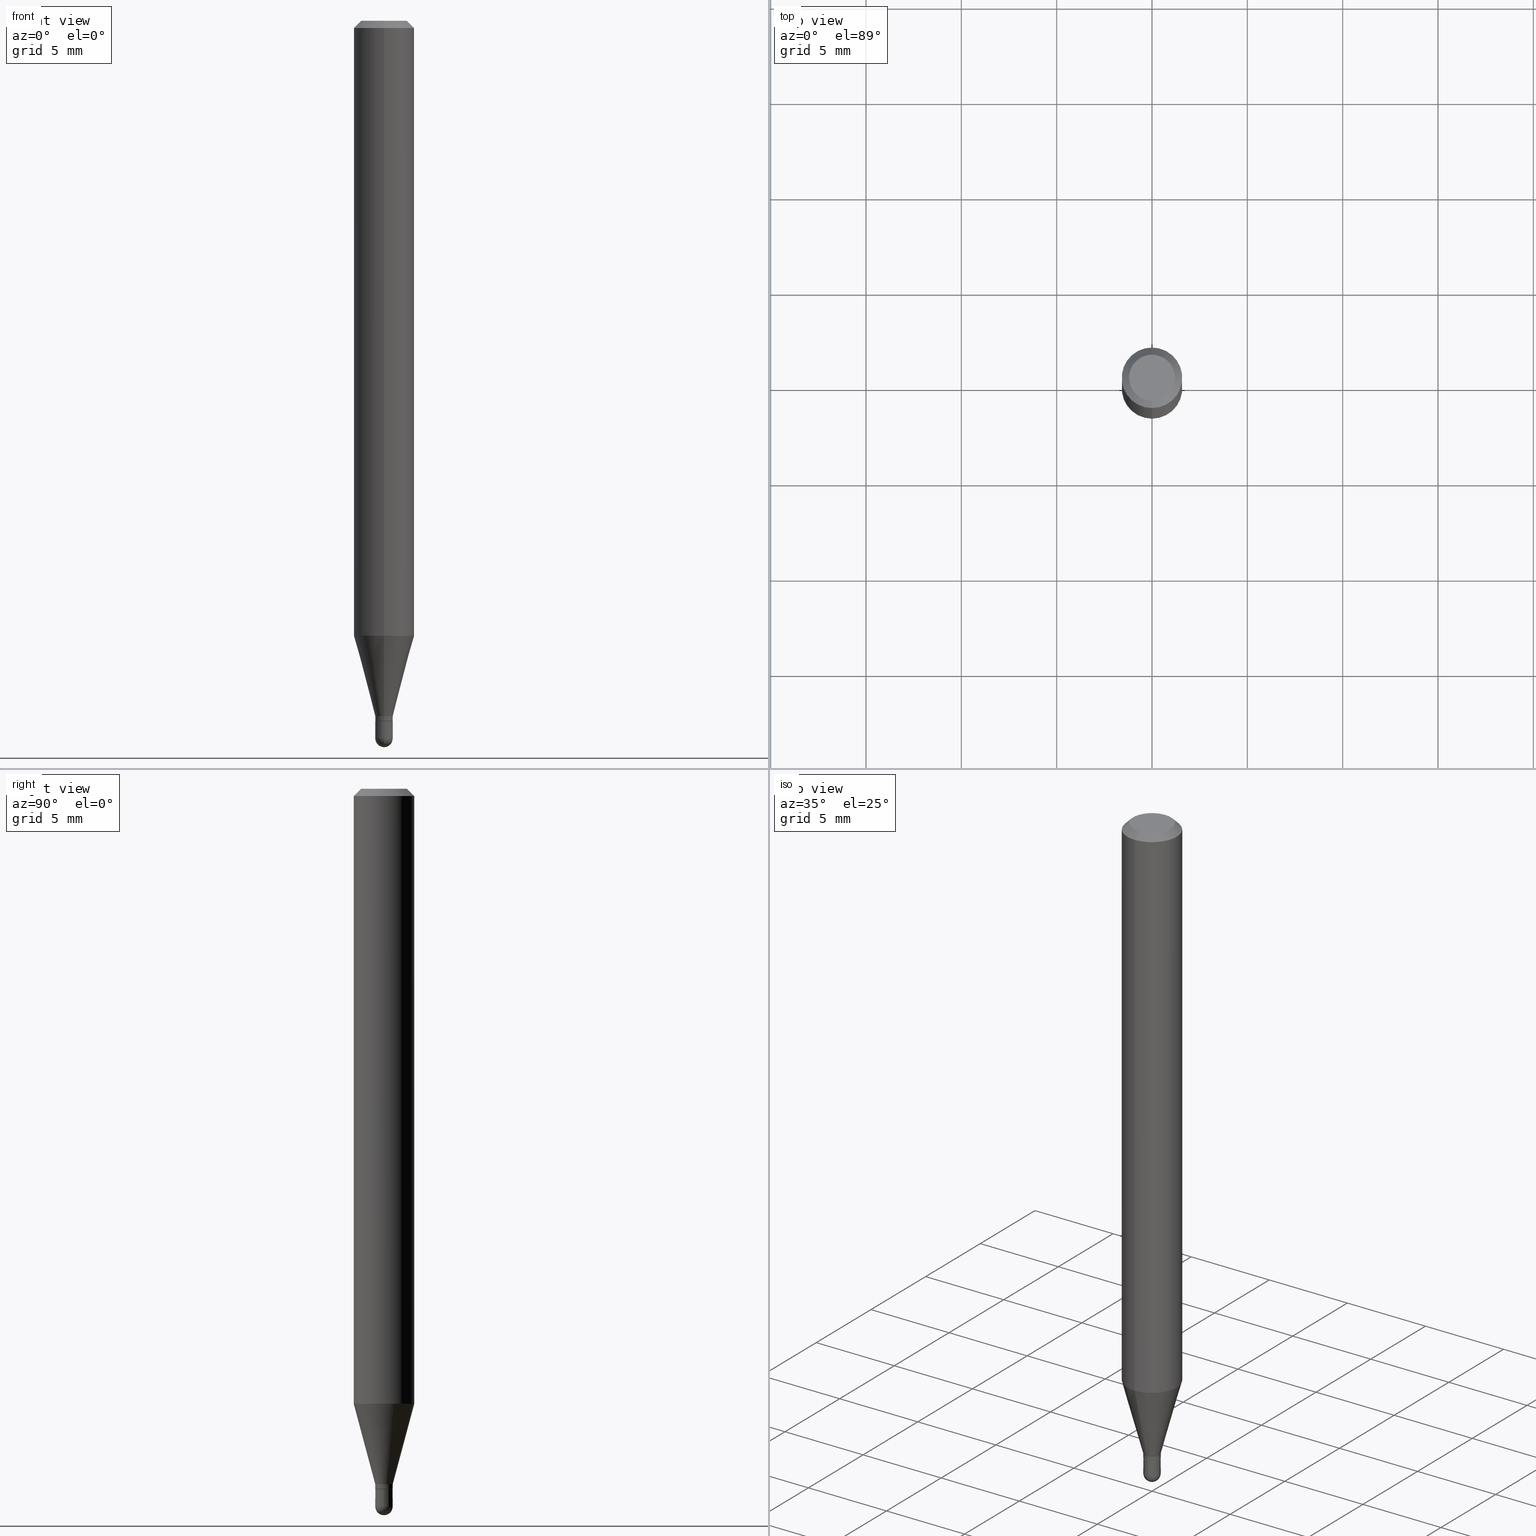
[diagram: canonical four-view strip — front | top / right | iso, engineering-drawing reading convention]
A machine part, canonical four-view strip (front | top / right | iso — engineering-drawing reading convention). The complete STEP part file that produces these views, byte-faithful:
ISO-10303-21;
HEADER;
FILE_DESCRIPTION (( 'STEP AP203' ),
    '1' );
FILE_NAME ('03060.STEP',
    '2024-03-08T18:05:12',
    ( '' ),
    ( '' ),
    'SwSTEP 2.0',
    'SolidWorks 2023',
    '' );
FILE_SCHEMA (( 'CONFIG_CONTROL_DESIGN' ));
ENDSEC;

DATA;
#1 =( CONVERSION_BASED_UNIT ( 'INCH', #433 ) LENGTH_UNIT ( ) NAMED_UNIT ( #209 ) );
#2 = CIRCLE ( 'NONE', #424, 0.04749999999999999362 ) ;
#3 = DIRECTION ( 'NONE',  ( -6.982962677686265922E-15, -1.000000000000000000, 3.483106191921935554E-15 ) ) ;
#4 = ORIENTED_EDGE ( 'NONE', *, *, #102, .F. ) ;
#5 = DIRECTION ( 'NONE',  ( -6.982962677686265922E-15, -1.000000000000000000, 3.491499279888508481E-15 ) ) ;
#6 = ORIENTED_EDGE ( 'NONE', *, *, #390, .T. ) ;
#7 = DIRECTION ( 'NONE',  ( 5.024295867788190974E-15, 0.7071067811865681119, 0.7071067811865270336 ) ) ;
#8 = COORDINATED_UNIVERSAL_TIME_OFFSET ( 5, 0, .BEHIND. ) ;
#9 = LINE ( 'NONE', #383, #221 ) ;
#10 = DIRECTION ( 'NONE',  ( 2.445456278020119844E-29, -3.491499279888508481E-15, -1.000000000000000000 ) ) ;
#11 = AXIS2_PLACEMENT_3D ( 'NONE', #399, #393, #510 ) ;
#12 = AXIS2_PLACEMENT_3D ( 'NONE', #266, #52, #137 ) ;
#13 = VECTOR ( 'NONE', #7, 39.37007874015748143 ) ;
#14 = DIRECTION ( 'NONE',  ( -6.982962677686265133E-15, -1.000000000000000000, 0.000000000000000000 ) ) ;
#15 = CARTESIAN_POINT ( 'NONE',  ( 0.000000000000000000, 0.000000000000000000, 0.000000000000000000 ) ) ;
#16 = PERSON_AND_ORGANIZATION ( #101, #371 ) ;
#17 = CARTESIAN_POINT ( 'NONE',  ( 3.536147893743707559E-29, -5.048682015967188692E-15, -1.446000000000000174 ) ) ;
#18 = ADVANCED_FACE ( 'NONE', ( #107 ), #25, .T. ) ;
#19 = CONICAL_SURFACE ( 'NONE', #26, 0.01749999999999999820, 0.7853981633974739252 ) ;
#20 = CARTESIAN_POINT ( 'NONE',  ( 3.622645471445850223E-29, -5.176579708404007627E-15, -1.482000000000000206 ) ) ;
#21 = AXIS2_PLACEMENT_3D ( 'NONE', #174, #90, #256 ) ;
#22 = UNCERTAINTY_MEASURE_WITH_UNIT (LENGTH_MEASURE( 1.000000000000000082E-05 ), #1, 'distance_accuracy_value', 'NONE');
#23 = VERTEX_POINT ( 'NONE', #496 ) ;
#24 = EDGE_CURVE ( 'NONE', #178, #501, #35, .T. ) ;
#25 = CYLINDRICAL_SURFACE ( 'NONE', #436, 0.06250000000000000000 ) ;
#26 = AXIS2_PLACEMENT_3D ( 'NONE', #472, #315, #119 ) ;
#27 = EDGE_LOOP ( 'NONE', ( #512, #474, #415, #149, #78 ) ) ;
#28 = ADVANCED_FACE ( 'NONE', ( #502 ), #202, .T. ) ;
#29 = VERTEX_POINT ( 'NONE', #386 ) ;
#30 = ORIENTED_EDGE ( 'NONE', *, *, #448, .F. ) ;
#31 = CARTESIAN_POINT ( 'NONE',  ( 3.840629472727447874E-16, 0.04749999999999999362, 7.364327909283752044E-17 ) ) ;
#32 = ADVANCED_FACE ( 'NONE', ( #429 ), #349, .T. ) ;
#33 = DIRECTION ( 'NONE',  ( 7.105427357601000281E-15, 1.000000000000000000, 0.000000000000000000 ) ) ;
#34 = DIRECTION ( 'NONE',  ( -2.445456278020119844E-29, 3.491499279888508481E-15, 1.000000000000000000 ) ) ;
#35 = CIRCLE ( 'NONE', #507, 0.06250000000000000000 ) ;
#36 = CC_DESIGN_SECURITY_CLASSIFICATION ( #328, ( #89 ) ) ;
#37 = CARTESIAN_POINT ( 'NONE',  ( 1.261213355974528268E-16, 0.01749999999999494668, -1.446000000000000174 ) ) ;
#38 = DIRECTION ( 'NONE',  ( 1.000000000000000000, -6.982962677686280121E-15, 0.000000000000000000 ) ) ;
#39 = ORIENTED_EDGE ( 'NONE', *, *, #455, .T. ) ;
#40 = ADVANCED_FACE ( 'NONE', ( #347 ), #160, .T. ) ;
#41 = PERSON_AND_ORGANIZATION_ROLE ( 'design_owner' ) ;
#42 = LINE ( 'NONE', #176, #411 ) ;
#43 = ORIENTED_EDGE ( 'NONE', *, *, #195, .F. ) ;
#44 = PERSON_AND_ORGANIZATION ( #101, #371 ) ;
#45 = ORIENTED_EDGE ( 'NONE', *, *, #312, .T. ) ;
#46 =( GEOMETRIC_REPRESENTATION_CONTEXT ( 3 ) GLOBAL_UNCERTAINTY_ASSIGNED_CONTEXT ( ( #22 ) ) GLOBAL_UNIT_ASSIGNED_CONTEXT ( ( #1, #511, #236 ) ) REPRESENTATION_CONTEXT ( 'NONE', 'WORKASPACE' ) );
#47 = FACE_OUTER_BOUND ( 'NONE', #237, .T. ) ;
#48 = ORIENTED_EDGE ( 'NONE', *, *, #207, .F. ) ;
#49 = CARTESIAN_POINT ( 'NONE',  ( 3.511675215236892590E-29, -5.013792965919898616E-15, -1.436000000000000165 ) ) ;
#50 = CARTESIAN_POINT ( 'NONE',  ( 3.665894260296920714E-29, -5.240528554622416701E-15, -1.500000000000000222 ) ) ;
#51 = CARTESIAN_POINT ( 'NONE',  ( -3.773273898774340269E-16, -0.04749999999999999362, 4.053357106822457906E-16 ) ) ;
#52 = DIRECTION ( 'NONE',  ( 1.000000000000000000, -6.982962677686265922E-15, 4.883557194083112901E-29 ) ) ;
#53 = DIRECTION ( 'NONE',  ( 1.000000000000000000, -6.982962677686266711E-15, 4.876176775795935232E-29 ) ) ;
#54 = AXIS2_PLACEMENT_3D ( 'NONE', #324, #85, #120 ) ;
#55 = VECTOR ( 'NONE', #94, 39.37007874015748143 ) ;
#56 = CALENDAR_DATE ( 2024, 8, 3 ) ;
#57 = PERSON_AND_ORGANIZATION_ROLE ( 'classification_officer' ) ;
#58 = ORIENTED_EDGE ( 'NONE', *, *, #126, .T. ) ;
#59 = CLOSED_SHELL ( 'NONE', ( #200, #257, #250, #264, #112, #32, #18, #28, #414, #271, #225, #40 ) ) ;
#60 = AXIS2_PLACEMENT_3D ( 'NONE', #148, #310, #463 ) ;
#61 = CIRCLE ( 'NONE', #21, 0.01799999999999992231 ) ;
#62 = DATE_AND_TIME ( #421, #191 ) ;
#63 = EDGE_LOOP ( 'NONE', ( #320, #198, #194, #86 ) ) ;
#64 = DIRECTION ( 'NONE',  ( 4.937700262164548042E-15, 0.7071067811865451302, -0.7071067811865499042 ) ) ;
#65 = ORIENTED_EDGE ( 'NONE', *, *, #465, .F. ) ;
#66 = CIRCLE ( 'NONE', #60, 0.01799999999999999517 ) ;
#67 = LINE ( 'NONE', #443, #242 ) ;
#68 = DIRECTION ( 'NONE',  ( -2.445456278020119844E-29, 3.491499279888508481E-15, 1.000000000000000000 ) ) ;
#69 = CARTESIAN_POINT ( 'NONE',  ( 1.278976924368523885E-16, 0.01799999999999481182, -1.445500000000000229 ) ) ;
#70 = DIRECTION ( 'NONE',  ( -2.445456278020119844E-29, 3.491499279888508481E-15, 1.000000000000000000 ) ) ;
#71 = ORIENTED_EDGE ( 'NONE', *, *, #395, .F. ) ;
#72 = DIRECTION ( 'NONE',  ( -2.445468806185136597E-29, 3.491481338843145583E-15, 1.000000000000000000 ) ) ;
#73 = ORIENTED_EDGE ( 'NONE', *, *, #364, .F. ) ;
#74 = CIRCLE ( 'NONE', #231, 0.01799999999999992231 ) ;
#75 = PRODUCT ( '03060', '03060', '', ( #154 ) ) ;
#76 = DIRECTION ( 'NONE',  ( -2.445456278020119844E-29, 3.491499279888508481E-15, 1.000000000000000000 ) ) ;
#77 = CARTESIAN_POINT ( 'NONE',  ( 1.256933281983881437E-16, 0.01799999999999494713, -1.446000000000000174 ) ) ;
#78 = ORIENTED_EDGE ( 'NONE', *, *, #465, .T. ) ;
#79 = DIRECTION ( 'NONE',  ( 1.000000000000000000, -6.982962677686265922E-15, 4.883557194083112901E-29 ) ) ;
#80 = CARTESIAN_POINT ( 'NONE',  ( 3.536129778017093225E-29, -5.048707958718783712E-15, -1.446000000000000174 ) ) ;
#81 = ORIENTED_EDGE ( 'NONE', *, *, #343, .F. ) ;
#82 = EDGE_CURVE ( 'NONE', #286, #401, #122, .T. ) ;
#83 = ADVANCED_FACE ( 'NONE', ( #284 ), #439, .F. ) ;
#84 = DATE_AND_TIME ( #133, #169 ) ;
#85 = DIRECTION ( 'NONE',  ( -2.445456278020119844E-29, 3.491499279888508481E-15, 1.000000000000000000 ) ) ;
#86 = ORIENTED_EDGE ( 'NONE', *, *, #455, .F. ) ;
#87 = DIRECTION ( 'NONE',  ( -6.982962677686265133E-15, -1.000000000000000000, 0.000000000000000000 ) ) ;
#88 = CC_DESIGN_PERSON_AND_ORGANIZATION_ASSIGNMENT ( #16, #296, ( #89 ) ) ;
#89 = PRODUCT_DEFINITION_FORMATION_WITH_SPECIFIED_SOURCE ( 'ANY', '', #75, .NOT_KNOWN. ) ;
#90 = DIRECTION ( 'NONE',  ( -2.445456278020119844E-29, 3.491499279888508481E-15, 1.000000000000000000 ) ) ;
#91 = CARTESIAN_POINT ( 'NONE',  ( 3.511675215236892590E-29, -5.013792965919898616E-15, -1.436000000000000165 ) ) ;
#92 = ORIENTED_EDGE ( 'NONE', *, *, #390, .F. ) ;
#93 = DIRECTION ( 'NONE',  ( -1.000000000000000000, 6.982962677686265922E-15, -4.883557194083112340E-29 ) ) ;
#94 = DIRECTION ( 'NONE',  ( -2.445456278020120124E-29, 3.491499279888508481E-15, 1.000000000000000000 ) ) ;
#95 = APPROVAL_STATUS ( 'not_yet_approved' ) ;
#96 = CYLINDRICAL_SURFACE ( 'NONE', #314, 0.06250000000000000000 ) ;
#97 = APPROVAL_DATE_TIME ( #84, #380 ) ;
#98 = APPROVAL_PERSON_ORGANIZATION ( #321, #354, #268 ) ;
#99 = PERSON_AND_ORGANIZATION_ROLE ( 'design_supplier' ) ;
#100 = DIRECTION ( 'NONE',  ( 2.445456278020119844E-29, -3.491499279888508481E-15, -1.000000000000000000 ) ) ;
#101 = PERSON ( 'UNSPECIFIED', 'UNSPECIFIED', 'UNSPECIFIED', ('UNSPECIFIED'), ('UNSPECIFIED'), ('UNSPECIFIED') ) ;
#102 = EDGE_CURVE ( 'NONE', #392, #501, #42, .T. ) ;
#103 = CARTESIAN_POINT ( 'NONE',  ( -0.01799999999999999864, 1.278976924368180238E-16, -8.854083162458829188E-31 ) ) ;
#104 = ORIENTED_EDGE ( 'NONE', *, *, #479, .F. ) ;
#105 = DATE_TIME_ROLE ( 'classification_date' ) ;
#106 = CLOSED_SHELL ( 'NONE', ( #331, #408, #83, #179, #333 ) ) ;
#107 = FACE_OUTER_BOUND ( 'NONE', #228, .T. ) ;
#108 = AXIS2_PLACEMENT_3D ( 'NONE', #15, #135, #295 ) ;
#109 = APPROVAL_STATUS ( 'not_yet_approved' ) ;
#110 = CALENDAR_DATE ( 2024, 8, 3 ) ;
#111 = ORIENTED_EDGE ( 'NONE', *, *, #491, .T. ) ;
#112 = ADVANCED_FACE ( 'NONE', ( #308 ), #113, .T. ) ;
#113 = CONICAL_SURFACE ( 'NONE', #269, 0.01799999999999992231, 0.2617993877991506846 ) ;
#114 = CC_DESIGN_APPROVAL ( #342, ( #89 ) ) ;
#115 = ORIENTED_EDGE ( 'NONE', *, *, #290, .T. ) ;
#116 = EDGE_CURVE ( 'NONE', #401, #178, #499, .T. ) ;
#117 = ORIENTED_EDGE ( 'NONE', *, *, #141, .F. ) ;
#118 = CC_DESIGN_PERSON_AND_ORGANIZATION_ASSIGNMENT ( #450, #99, ( #89 ) ) ;
#119 = DIRECTION ( 'NONE',  ( -6.982962677686265922E-15, -1.000000000000000000, 0.000000000000000000 ) ) ;
#120 = DIRECTION ( 'NONE',  ( -6.982962677686265922E-15, -1.000000000000000000, 4.370956789862821150E-15 ) ) ;
#121 = ORIENTED_EDGE ( 'NONE', *, *, #161, .T. ) ;
#122 = CIRCLE ( 'NONE', #54, 0.06250000000000000000 ) ;
#123 = AXIS2_PLACEMENT_3D ( 'NONE', #241, #159, #33 ) ;
#124 = DIRECTION ( 'NONE',  ( -2.445456278020119844E-29, 3.491499279888508481E-15, 1.000000000000000000 ) ) ;
#125 = ORIENTED_EDGE ( 'NONE', *, *, #116, .T. ) ;
#126 = EDGE_CURVE ( 'NONE', #155, #178, #461, .T. ) ;
#127 = VERTEX_POINT ( 'NONE', #230 ) ;
#128 = CARTESIAN_POINT ( 'NONE',  ( -5.856610887926061655E-45, 8.361773989407141763E-31, 2.394894948875416309E-16 ) ) ;
#129 = EDGE_CURVE ( 'NONE', #252, #201, #66, .T. ) ;
#130 = DIRECTION ( 'NONE',  ( -6.982962677686265922E-15, -1.000000000000000000, 3.491499279888508481E-15 ) ) ;
#131 = AXIS2_PLACEMENT_3D ( 'NONE', #77, #248, #400 ) ;
#132 = CARTESIAN_POINT ( 'NONE',  ( 3.536129778017093225E-29, -5.048707958718783712E-15, -1.446000000000000174 ) ) ;
#133 = CALENDAR_DATE ( 2024, 8, 3 ) ;
#134 = DIRECTION ( 'NONE',  ( -2.445468806185136597E-29, 3.491481338843145583E-15, 1.000000000000000000 ) ) ;
#135 = DIRECTION ( 'NONE',  ( -2.445468806185136597E-29, 3.491481338843145583E-15, 1.000000000000000000 ) ) ;
#136 = DATE_AND_TIME ( #444, #243 ) ;
#137 = DIRECTION ( 'NONE',  ( -6.982962677686265922E-15, -1.000000000000000000, 0.000000000000000000 ) ) ;
#138 = APPLICATION_CONTEXT ( 'configuration controlled 3d designs of mechanical parts and assemblies' ) ;
#139 = LINE ( 'NONE', #103, #307 ) ;
#140 = ORIENTED_EDGE ( 'NONE', *, *, #448, .T. ) ;
#141 = EDGE_CURVE ( 'NONE', #23, #356, #67, .T. ) ;
#142 = AXIS2_PLACEMENT_3D ( 'NONE', #378, #340, #14 ) ;
#143 = VERTEX_POINT ( 'NONE', #69 ) ;
#144 = PRODUCT_DEFINITION ( 'UNKNOWN', '', #89, #435 ) ;
#145 = CARTESIAN_POINT ( 'NONE',  ( 4.440892098500625669E-16, 0.06250000000000000000, -2.182187049930317801E-16 ) ) ;
#146 = CARTESIAN_POINT ( 'NONE',  ( 3.668184417030121542E-31, -5.237248919832678831E-17, -0.01499999999999976179 ) ) ;
#147 = EDGE_CURVE ( 'NONE', #356, #184, #196, .T. ) ;
#148 = CARTESIAN_POINT ( 'NONE',  ( 3.624184770766373010E-29, -5.174375344165542471E-15, -1.482000000000000206 ) ) ;
#149 = ORIENTED_EDGE ( 'NONE', *, *, #456, .F. ) ;
#150 = DIRECTION ( 'NONE',  ( -6.982962677686265133E-15, -1.000000000000000000, 0.000000000000000000 ) ) ;
#151 = EDGE_CURVE ( 'NONE', #143, #356, #240, .T. ) ;
#152 = VERTEX_POINT ( 'NONE', #438 ) ;
#153 = SPHERICAL_SURFACE ( 'NONE', #485, 0.01799999999999982170 ) ;
#154 = MECHANICAL_CONTEXT ( 'NONE', #164, 'mechanical' ) ;
#155 = VERTEX_POINT ( 'NONE', #31 ) ;
#156 = ORIENTED_EDGE ( 'NONE', *, *, #141, .T. ) ;
#157 = LOCAL_TIME ( 13, 5, 12.00000000000000000, #447 ) ;
#158 = CC_DESIGN_PERSON_AND_ORGANIZATION_ASSIGNMENT ( #484, #259, ( #144 ) ) ;
#159 = DIRECTION ( 'NONE',  ( 1.000000000000000000, -7.105427357601001070E-15, 4.926315508542082329E-29 ) ) ;
#160 = CYLINDRICAL_SURFACE ( 'NONE', #190, 0.01799999999999992231 ) ;
#161 = EDGE_CURVE ( 'NONE', #155, #392, #2, .T. ) ;
#162 = EDGE_LOOP ( 'NONE', ( #81, #468, #332, #245, #457 ) ) ;
#163 = DIRECTION ( 'NONE',  ( -2.445456278020119844E-29, 3.491499279888508481E-15, 1.000000000000000000 ) ) ;
#164 = APPLICATION_CONTEXT ( 'configuration controlled 3d designs of mechanical parts and assemblies' ) ;
#165 = MANIFOLD_SOLID_BREP ( 'Body-Move/Copy2[1]', #106 ) ;
#166 = LINE ( 'NONE', #446, #55 ) ;
#167 = CARTESIAN_POINT ( 'NONE',  ( -1.256933281983173188E-16, -0.01800000000000502934, -1.445500000000000229 ) ) ;
#168 = VECTOR ( 'NONE', #64, 39.37007874015748143 ) ;
#169 = LOCAL_TIME ( 13, 5, 12.00000000000000000, #294 ) ;
#170 = DIRECTION ( 'NONE',  ( -2.445456278020119844E-29, 3.491499279888508481E-15, 1.000000000000000000 ) ) ;
#171 = CC_DESIGN_DATE_AND_TIME_ASSIGNMENT ( #136, #335, ( #144 ) ) ;
#172 = DIRECTION ( 'NONE',  ( -2.445456278020119564E-29, 3.491499279888508481E-15, 1.000000000000000000 ) ) ;
#173 = APPROVAL_ROLE ( '' ) ;
#174 = CARTESIAN_POINT ( 'NONE',  ( 3.511675215236892590E-29, -5.013792965919898616E-15, -1.436000000000000165 ) ) ;
#175 = AXIS2_PLACEMENT_3D ( 'NONE', #17, #449, #208 ) ;
#176 = CARTESIAN_POINT ( 'NONE',  ( -4.287811248607203282E-16, -0.06250000000000005551, -0.01499999999999954321 ) ) ;
#177 = CC_DESIGN_PERSON_AND_ORGANIZATION_ASSIGNMENT ( #44, #41, ( #75 ) ) ;
#178 = VERTEX_POINT ( 'NONE', #188 ) ;
#179 = ADVANCED_FACE ( 'NONE', ( #428 ), #153, .T. ) ;
#180 = CARTESIAN_POINT ( 'NONE',  ( 0.000000000000000000, 0.000000000000000000, 0.000000000000000000 ) ) ;
#181 = CIRCLE ( 'NONE', #305, 0.06250000000000000000 ) ;
#182 = AXIS2_PLACEMENT_3D ( 'NONE', #280, #68, #327 ) ;
#183 = VERTEX_POINT ( 'NONE', #477 ) ;
#184 = VERTEX_POINT ( 'NONE', #358 ) ;
#185 = DIRECTION ( 'NONE',  ( -6.982962677686265922E-15, -1.000000000000000000, 3.483106191921935554E-15 ) ) ;
#186 = DIRECTION ( 'NONE',  ( -2.445456278020119844E-29, 3.491499279888508481E-15, 1.000000000000000000 ) ) ;
#187 = DIRECTION ( 'NONE',  ( -6.982962677686266711E-15, -1.000000000000000000, 3.491499279888509270E-15 ) ) ;
#188 = CARTESIAN_POINT ( 'NONE',  ( 4.440892098500937762E-16, 0.06249999999999993755, -0.01499999999999997863 ) ) ;
#189 = DIRECTION ( 'NONE',  ( -6.982962677686265922E-15, -1.000000000000000000, 0.000000000000000000 ) ) ;
#190 = AXIS2_PLACEMENT_3D ( 'NONE', #319, #34, #367 ) ;
#191 = LOCAL_TIME ( 13, 5, 12.00000000000000000, #419 ) ;
#192 = VERTEX_POINT ( 'NONE', #37 ) ;
#193 = DIRECTION ( 'NONE',  ( -2.445456278020120124E-29, 3.491499279888508481E-15, 1.000000000000000000 ) ) ;
#194 = ORIENTED_EDGE ( 'NONE', *, *, #82, .F. ) ;
#195 = EDGE_CURVE ( 'NONE', #501, #178, #181, .T. ) ;
#196 = LINE ( 'NONE', #199, #418 ) ;
#197 = APPLICATION_PROTOCOL_DEFINITION ( 'international standard', 'config_control_design', 1994, #138 ) ;
#198 = ORIENTED_EDGE ( 'NONE', *, *, #207, .T. ) ;
#199 = CARTESIAN_POINT ( 'NONE',  ( -1.256933281983522259E-16, -0.01799999999999992231, 6.284698703799287567E-17 ) ) ;
#200 = ADVANCED_FACE ( 'NONE', ( #370 ), #394, .T. ) ;
#201 = VERTEX_POINT ( 'NONE', #330 ) ;
#202 = CONICAL_SURFACE ( 'NONE', #254, 0.06250000000000000000, 0.7853981633974483900 ) ;
#203 = AXIS2_PLACEMENT_3D ( 'NONE', #318, #506, #470 ) ;
#204 = CARTESIAN_POINT ( 'NONE',  ( 3.536129778017093225E-29, -5.048707958718783712E-15, -1.446000000000000174 ) ) ;
#205 = ORIENTED_EDGE ( 'NONE', *, *, #147, .T. ) ;
#206 = CARTESIAN_POINT ( 'NONE',  ( 1.243449787580528705E-16, 0.01749999999999494668, -1.446000000000000174 ) ) ;
#207 = EDGE_CURVE ( 'NONE', #152, #401, #246, .T. ) ;
#208 = DIRECTION ( 'NONE',  ( 1.000000000000000000, -6.982962677686279332E-15, 0.000000000000000000 ) ) ;
#209 = DIMENSIONAL_EXPONENTS ( 1.000000000000000000, 0.000000000000000000, 0.000000000000000000, 0.000000000000000000, 0.000000000000000000, 0.000000000000000000, 0.000000000000000000 ) ;
#210 = DIRECTION ( 'NONE',  ( 6.982962677686265922E-15, 1.000000000000000000, -3.491499279888508481E-15 ) ) ;
#211 = AXIS2_PLACEMENT_3D ( 'NONE', #91, #302, #150 ) ;
#212 = CIRCLE ( 'NONE', #203, 0.01799999999999999517 ) ;
#213 = FACE_OUTER_BOUND ( 'NONE', #162, .T. ) ;
#214 = DATE_AND_TIME ( #56, #157 ) ;
#215 = COORDINATED_UNIVERSAL_TIME_OFFSET ( 5, 0, .BEHIND. ) ;
#216 = CC_DESIGN_PERSON_AND_ORGANIZATION_ASSIGNMENT ( #413, #57, ( #328 ) ) ;
#217 = EDGE_CURVE ( 'NONE', #29, #277, #220, .T. ) ;
#218 = ORIENTED_EDGE ( 'NONE', *, *, #290, .F. ) ;
#219 = DIRECTION ( 'NONE',  ( -2.445468806185136877E-29, 3.491481338843145188E-15, 1.000000000000000000 ) ) ;
#220 = CIRCLE ( 'NONE', #261, 0.01799999999999999864 ) ;
#221 = VECTOR ( 'NONE', #297, 39.37007874015748143 ) ;
#222 = ORIENTED_EDGE ( 'NONE', *, *, #126, .F. ) ;
#223 = ORIENTED_EDGE ( 'NONE', *, *, #260, .T. ) ;
#224 = APPROVAL_DATE_TIME ( #62, #354 ) ;
#225 = ADVANCED_FACE ( 'NONE', ( #441 ), #19, .T. ) ;
#226 = DIRECTION ( 'NONE',  ( -6.982962677686265133E-15, -1.000000000000000000, 0.000000000000000000 ) ) ;
#227 = ORIENTED_EDGE ( 'NONE', *, *, #279, .F. ) ;
#228 = EDGE_LOOP ( 'NONE', ( #417, #352, #45, #304 ) ) ;
#229 = CIRCLE ( 'NONE', #345, 0.01749999999999999820 ) ;
#230 = CARTESIAN_POINT ( 'NONE',  ( -1.256933281983159137E-16, -0.01800000000000508138, -1.482000000000000206 ) ) ;
#231 = AXIS2_PLACEMENT_3D ( 'NONE', #49, #360, #87 ) ;
#232 = ORIENTED_EDGE ( 'NONE', *, *, #151, .T. ) ;
#233 = CARTESIAN_POINT ( 'NONE',  ( 1.278976924368174568E-16, 0.01799999999999992231, -6.284698703799287567E-17 ) ) ;
#234 = CC_DESIGN_DATE_AND_TIME_ASSIGNMENT ( #344, #105, ( #328 ) ) ;
#235 = CARTESIAN_POINT ( 'NONE',  ( 3.668184417030121542E-31, -5.237248919832678831E-17, -0.01499999999999976179 ) ) ;
#236 =( NAMED_UNIT ( * ) SI_UNIT ( $, .STERADIAN. ) SOLID_ANGLE_UNIT ( ) );
#237 = EDGE_LOOP ( 'NONE', ( #111, #115, #495, #117 ) ) ;
#238 = FACE_OUTER_BOUND ( 'NONE', #396, .T. ) ;
#239 = DIRECTION ( 'NONE',  ( 1.000000000000000000, -6.982962677686279332E-15, 0.000000000000000000 ) ) ;
#240 = CIRCLE ( 'NONE', #11, 0.01799999999999992231 ) ;
#241 = CARTESIAN_POINT ( 'NONE',  ( 3.622645471445850223E-29, -5.176579708404007627E-15, -1.482000000000000206 ) ) ;
#242 = VECTOR ( 'NONE', #365, 39.37007874015748143 ) ;
#243 = LOCAL_TIME ( 13, 5, 12.00000000000000000, #8 ) ;
#244 = ORIENTED_EDGE ( 'NONE', *, *, #24, .T. ) ;
#245 = ORIENTED_EDGE ( 'NONE', *, *, #456, .T. ) ;
#246 = LINE ( 'NONE', #509, #475 ) ;
#247 = CARTESIAN_POINT ( 'NONE',  ( 3.624184770766373010E-29, -5.174375344165542471E-15, -1.482000000000000206 ) ) ;
#248 = DIRECTION ( 'NONE',  ( 2.438088387897960049E-29, -3.491481338843145188E-15, -1.000000000000000000 ) ) ;
#249 = ORIENTED_EDGE ( 'NONE', *, *, #422, .T. ) ;
#250 = ADVANCED_FACE ( 'NONE', ( #282 ), #493, .T. ) ;
#251 = DIRECTION ( 'NONE',  ( -6.982962677686265922E-15, -1.000000000000000000, 0.000000000000000000 ) ) ;
#252 = VERTEX_POINT ( 'NONE', #258 ) ;
#253 = EDGE_LOOP ( 'NONE', ( #48, #267, #39, #500 ) ) ;
#254 = AXIS2_PLACEMENT_3D ( 'NONE', #454, #100, #265 ) ;
#255 = CIRCLE ( 'NONE', #175, 0.01799999999999999864 ) ;
#256 = DIRECTION ( 'NONE',  ( -6.982962677686265133E-15, -1.000000000000000000, 0.000000000000000000 ) ) ;
#257 = ADVANCED_FACE ( 'NONE', ( #47 ), #299, .T. ) ;
#258 = CARTESIAN_POINT ( 'NONE',  ( 1.278976924368535965E-16, 0.01799999999999473549, -1.482000000000000206 ) ) ;
#259 = PERSON_AND_ORGANIZATION_ROLE ( 'creator' ) ;
#260 = EDGE_CURVE ( 'NONE', #192, #23, #229, .T. ) ;
#261 = AXIS2_PLACEMENT_3D ( 'NONE', #278, #72, #239 ) ;
#262 = SECURITY_CLASSIFICATION_LEVEL ( 'unclassified' ) ;
#263 = SPHERICAL_SURFACE ( 'NONE', #12, 0.01799999999999982170 ) ;
#264 = ADVANCED_FACE ( 'NONE', ( #301 ), #96, .T. ) ;
#265 = DIRECTION ( 'NONE',  ( 6.982962677686265922E-15, 1.000000000000000000, -3.483106191921935554E-15 ) ) ;
#266 = CARTESIAN_POINT ( 'NONE',  ( 3.622645471445850223E-29, -5.176579708404007627E-15, -1.482000000000000206 ) ) ;
#267 = ORIENTED_EDGE ( 'NONE', *, *, #395, .T. ) ;
#268 = APPROVAL_ROLE ( '' ) ;
#269 = AXIS2_PLACEMENT_3D ( 'NONE', #355, #458, #226 ) ;
#270 = CC_DESIGN_APPROVAL ( #354, ( #328 ) ) ;
#271 = ADVANCED_FACE ( 'NONE', ( #292 ), #334, .F. ) ;
#272 = LINE ( 'NONE', #430, #412 ) ;
#273 = AXIS2_PLACEMENT_3D ( 'NONE', #132, #385, #336 ) ;
#274 = DIRECTION ( 'NONE',  ( -4.851104656540964275E-15, -0.7071067811865500152, -0.7071067811865450192 ) ) ;
#275 = CIRCLE ( 'NONE', #437, 0.01799999999999982170 ) ;
#276 = EDGE_CURVE ( 'NONE', #277, #29, #255, .T. ) ;
#277 = VERTEX_POINT ( 'NONE', #341 ) ;
#278 = CARTESIAN_POINT ( 'NONE',  ( 3.536147893743707559E-29, -5.048682015967188692E-15, -1.446000000000000174 ) ) ;
#279 = EDGE_CURVE ( 'NONE', #184, #152, #61, .T. ) ;
#280 = CARTESIAN_POINT ( 'NONE',  ( 3.105542980298851762E-29, -4.433937820452434626E-15, -1.269923739063185675 ) ) ;
#281 = ORIENTED_EDGE ( 'NONE', *, *, #195, .T. ) ;
#282 = FACE_OUTER_BOUND ( 'NONE', #325, .T. ) ;
#283 = DIRECTION ( 'NONE',  ( 0.000000000000000000, 0.000000000000000000, 1.000000000000000000 ) ) ;
#284 = FACE_OUTER_BOUND ( 'NONE', #374, .T. ) ;
#285 = CC_DESIGN_APPROVAL ( #380, ( #144 ) ) ;
#286 = VERTEX_POINT ( 'NONE', #409 ) ;
#287 = CARTESIAN_POINT ( 'NONE',  ( 0.000000000000000000, 0.000000000000000000, 0.000000000000000000 ) ) ;
#288 = VERTEX_POINT ( 'NONE', #50 ) ;
#289 = DIRECTION ( 'NONE',  ( -2.445456278020119844E-29, 3.491499279888508481E-15, 1.000000000000000000 ) ) ;
#290 = EDGE_CURVE ( 'NONE', #192, #143, #490, .T. ) ;
#291 = CARTESIAN_POINT ( 'NONE',  ( 3.668184417030121542E-31, -5.237248919832678831E-17, -0.01499999999999976179 ) ) ;
#292 = FACE_OUTER_BOUND ( 'NONE', #482, .T. ) ;
#293 = APPROVAL_STATUS ( 'not_yet_approved' ) ;
#294 = COORDINATED_UNIVERSAL_TIME_OFFSET ( 5, 0, .BEHIND. ) ;
#295 = DIRECTION ( 'NONE',  ( 1.000000000000000000, -6.982962677686266711E-15, 4.876176775795935232E-29 ) ) ;
#296 = PERSON_AND_ORGANIZATION_ROLE ( 'creator' ) ;
#297 = DIRECTION ( 'NONE',  ( -1.807323732225332900E-15, -0.2588190451025185745, 0.9659258262890689783 ) ) ;
#298 = CARTESIAN_POINT ( 'NONE',  ( 3.624184770766373010E-29, -5.174375344165542471E-15, -1.482000000000000206 ) ) ;
#299 = CONICAL_SURFACE ( 'NONE', #273, 0.01749999999999999820, 0.7853981633974739252 ) ;
#300 = CIRCLE ( 'NONE', #379, 0.04749999999999999362 ) ;
#301 = FACE_OUTER_BOUND ( 'NONE', #434, .T. ) ;
#302 = DIRECTION ( 'NONE',  ( -2.445456278020119844E-29, 3.491499279888508481E-15, 1.000000000000000000 ) ) ;
#303 = DIRECTION ( 'NONE',  ( -2.445456278020119844E-29, 3.491499279888508481E-15, 1.000000000000000000 ) ) ;
#304 = ORIENTED_EDGE ( 'NONE', *, *, #24, .F. ) ;
#305 = AXIS2_PLACEMENT_3D ( 'NONE', #235, #124, #3 ) ;
#306 = AXIS2_PLACEMENT_3D ( 'NONE', #298, #487, #452 ) ;
#307 = VECTOR ( 'NONE', #219, 39.37007874015748143 ) ;
#308 = FACE_OUTER_BOUND ( 'NONE', #63, .T. ) ;
#309 = DIRECTION ( 'NONE',  ( -2.445456278020120124E-29, 3.491499279888508481E-15, 1.000000000000000000 ) ) ;
#310 = DIRECTION ( 'NONE',  ( -2.445468806185136597E-29, 3.491481338843145583E-15, 1.000000000000000000 ) ) ;
#311 = ADVANCED_BREP_SHAPE_REPRESENTATION ( '03060', ( #165, #351, #508 ), #46 ) ;
#312 = EDGE_CURVE ( 'NONE', #286, #501, #166, .T. ) ;
#313 = DIRECTION ( 'NONE',  ( -2.445456278020120124E-29, 3.491499279888508481E-15, 1.000000000000000000 ) ) ;
#314 = AXIS2_PLACEMENT_3D ( 'NONE', #373, #170, #5 ) ;
#315 = DIRECTION ( 'NONE',  ( -2.445456278020119844E-29, 3.491499279888508481E-15, 1.000000000000000000 ) ) ;
#316 = AXIS2_PLACEMENT_3D ( 'NONE', #492, #387, #210 ) ;
#317 = ORIENTED_EDGE ( 'NONE', *, *, #82, .T. ) ;
#318 = CARTESIAN_POINT ( 'NONE',  ( 3.624184770766373010E-29, -5.174375344165542471E-15, -1.482000000000000206 ) ) ;
#319 = CARTESIAN_POINT ( 'NONE',  ( 0.000000000000000000, 0.000000000000000000, 0.000000000000000000 ) ) ;
#320 = ORIENTED_EDGE ( 'NONE', *, *, #279, .T. ) ;
#321 = PERSON_AND_ORGANIZATION ( #101, #371 ) ;
#322 = DIRECTION ( 'NONE',  ( 1.839019923739603076E-15, 0.2588190451025253469, 0.9659258262890670910 ) ) ;
#323 =( LENGTH_UNIT ( ) NAMED_UNIT ( * ) SI_UNIT ( $, .METRE. ) );
#324 = CARTESIAN_POINT ( 'NONE',  ( 3.105542980298851762E-29, -4.433937820452434626E-15, -1.269923739063185675 ) ) ;
#325 = EDGE_LOOP ( 'NONE', ( #92, #480, #281, #222 ) ) ;
#326 = CARTESIAN_POINT ( 'NONE',  ( -5.856610887926061655E-45, 8.361773989407141763E-31, 2.394894948875416309E-16 ) ) ;
#327 = DIRECTION ( 'NONE',  ( -6.982962677686265922E-15, -1.000000000000000000, 4.370956789862821150E-15 ) ) ;
#328 = SECURITY_CLASSIFICATION ( '', '', #262 ) ;
#329 = ORIENTED_EDGE ( 'NONE', *, *, #161, .F. ) ;
#330 = CARTESIAN_POINT ( 'NONE',  ( -0.01799999999999999517, -4.983630987629547040E-15, -1.482000000000000206 ) ) ;
#331 = ADVANCED_FACE ( 'NONE', ( #407 ), #338, .T. ) ;
#332 = ORIENTED_EDGE ( 'NONE', *, *, #479, .T. ) ;
#333 = ADVANCED_FACE ( 'NONE', ( #213 ), #381, .T. ) ;
#334 = PLANE ( 'NONE',  #464 ) ;
#335 = DATE_TIME_ROLE ( 'creation_date' ) ;
#336 = DIRECTION ( 'NONE',  ( -6.982962677686265922E-15, -1.000000000000000000, 0.000000000000000000 ) ) ;
#337 = CIRCLE ( 'NONE', #123, 0.01799999999999982170 ) ;
#338 = CYLINDRICAL_SURFACE ( 'NONE', #350, 0.01799999999999999864 ) ;
#339 = APPROVAL_ROLE ( '' ) ;
#340 = DIRECTION ( 'NONE',  ( -2.445456278020119844E-29, 3.491499279888508481E-15, 1.000000000000000000 ) ) ;
#341 = CARTESIAN_POINT ( 'NONE',  ( -0.01799999999999999864, -4.983630987629547040E-15, -1.446000000000000174 ) ) ;
#342 = APPROVAL ( #293, 'UNSPECIFIED' ) ;
#343 = EDGE_CURVE ( 'NONE', #201, #277, #139, .T. ) ;
#344 = DATE_AND_TIME ( #110, #466 ) ;
#345 = AXIS2_PLACEMENT_3D ( 'NONE', #204, #163, #376 ) ;
#346 = AXIS2_PLACEMENT_3D ( 'NONE', #247, #426, #38 ) ;
#347 = FACE_OUTER_BOUND ( 'NONE', #398, .T. ) ;
#348 = DIRECTION ( 'NONE',  ( -6.982962677686265922E-15, -1.000000000000000000, 3.491499279888508481E-15 ) ) ;
#349 = CONICAL_SURFACE ( 'NONE', #211, 0.01799999999999992231, 0.2617993877991506846 ) ;
#350 = AXIS2_PLACEMENT_3D ( 'NONE', #489, #134, #53 ) ;
#351 = MANIFOLD_SOLID_BREP ( 'Body-Move/Copy2[2]', #59 ) ;
#352 = ORIENTED_EDGE ( 'NONE', *, *, #503, .T. ) ;
#353 = ORIENTED_EDGE ( 'NONE', *, *, #491, .F. ) ;
#354 = APPROVAL ( #109, 'UNSPECIFIED' ) ;
#355 = CARTESIAN_POINT ( 'NONE',  ( 3.511675215236892590E-29, -5.013792965919898616E-15, -1.436000000000000165 ) ) ;
#356 = VERTEX_POINT ( 'NONE', #167 ) ;
#357 = ORIENTED_EDGE ( 'NONE', *, *, #312, .F. ) ;
#358 = CARTESIAN_POINT ( 'NONE',  ( -1.256933281983171216E-16, -0.01800000000000493566, -1.436000000000000165 ) ) ;
#359 = ORIENTED_EDGE ( 'NONE', *, *, #276, .T. ) ;
#360 = DIRECTION ( 'NONE',  ( -2.445456278020119844E-29, 3.491499279888508481E-15, 1.000000000000000000 ) ) ;
#361 = DIRECTION ( 'NONE',  ( -6.982962677686265133E-15, -1.000000000000000000, 3.491499279888508087E-15 ) ) ;
#362 = APPROVAL_PERSON_ORGANIZATION ( #369, #380, #339 ) ;
#363 = ORIENTED_EDGE ( 'NONE', *, *, #460, .F. ) ;
#364 = EDGE_CURVE ( 'NONE', #143, #152, #505, .T. ) ;
#365 = DIRECTION ( 'NONE',  ( -4.937700262164674260E-15, -0.7071067811865632269, 0.7071067811865319186 ) ) ;
#366 = DIRECTION ( 'NONE',  ( -2.445468806185136877E-29, 3.491481338843145188E-15, 1.000000000000000000 ) ) ;
#367 = DIRECTION ( 'NONE',  ( -6.982962677686265133E-15, -1.000000000000000000, 3.491499279888508087E-15 ) ) ;
#368 = ORIENTED_EDGE ( 'NONE', *, *, #364, .T. ) ;
#369 = PERSON_AND_ORGANIZATION ( #101, #371 ) ;
#370 = FACE_OUTER_BOUND ( 'NONE', #431, .T. ) ;
#371 = ORGANIZATION ( 'UNSPECIFIED', 'UNSPECIFIED', '' ) ;
#372 = ORIENTED_EDGE ( 'NONE', *, *, #260, .F. ) ;
#373 = CARTESIAN_POINT ( 'NONE',  ( 0.000000000000000000, 0.000000000000000000, 0.000000000000000000 ) ) ;
#374 = EDGE_LOOP ( 'NONE', ( #504, #359 ) ) ;
#375 = DIRECTION ( 'NONE',  ( -6.982962677686265922E-15, -1.000000000000000000, 0.000000000000000000 ) ) ;
#376 = DIRECTION ( 'NONE',  ( -6.982962677686265922E-15, -1.000000000000000000, 0.000000000000000000 ) ) ;
#377 = AXIS2_PLACEMENT_3D ( 'NONE', #287, #76, #361 ) ;
#378 = CARTESIAN_POINT ( 'NONE',  ( 3.534907049878083698E-29, -5.046962209078839103E-15, -1.445500000000000229 ) ) ;
#379 = AXIS2_PLACEMENT_3D ( 'NONE', #128, #289, #187 ) ;
#380 = APPROVAL ( #95, 'UNSPECIFIED' ) ;
#381 = CYLINDRICAL_SURFACE ( 'NONE', #108, 0.01799999999999999864 ) ;
#382 = APPROVAL_DATE_TIME ( #214, #342 ) ;
#383 = CARTESIAN_POINT ( 'NONE',  ( -1.256933281983171216E-16, -0.01800000000000493566, -1.436000000000000165 ) ) ;
#384 = FACE_OUTER_BOUND ( 'NONE', #427, .T. ) ;
#385 = DIRECTION ( 'NONE',  ( -2.445456278020119844E-29, 3.491499279888508481E-15, 1.000000000000000000 ) ) ;
#386 = CARTESIAN_POINT ( 'NONE',  ( 0.01799999999999999864, -5.174375344165541682E-15, -1.446000000000000174 ) ) ;
#387 = DIRECTION ( 'NONE',  ( 2.445456278020119564E-29, -3.491499279888508481E-15, -1.000000000000000000 ) ) ;
#388 = EDGE_LOOP ( 'NONE', ( #4, #329, #58, #244 ) ) ;
#389 = SHAPE_DEFINITION_REPRESENTATION ( #453, #311 ) ;
#390 = EDGE_CURVE ( 'NONE', #392, #155, #300, .T. ) ;
#391 = ORIENTED_EDGE ( 'NONE', *, *, #442, .F. ) ;
#392 = VERTEX_POINT ( 'NONE', #51 ) ;
#393 = DIRECTION ( 'NONE',  ( -2.445456278020119844E-29, 3.491499279888508481E-15, 1.000000000000000000 ) ) ;
#394 = CYLINDRICAL_SURFACE ( 'NONE', #377, 0.01799999999999992231 ) ;
#395 = EDGE_CURVE ( 'NONE', #152, #184, #74, .T. ) ;
#396 = EDGE_LOOP ( 'NONE', ( #30, #406, #65, #104 ) ) ;
#397 = CIRCLE ( 'NONE', #494, 0.01749999999999999820 ) ;
#398 = EDGE_LOOP ( 'NONE', ( #73, #232, #205, #71 ) ) ;
#399 = CARTESIAN_POINT ( 'NONE',  ( 3.534907049878083698E-29, -5.046962209078839103E-15, -1.445500000000000229 ) ) ;
#400 = DIRECTION ( 'NONE',  ( -1.000000000000000000, 6.982962677686265922E-15, -4.876176775795935793E-29 ) ) ;
#401 = VERTEX_POINT ( 'NONE', #469 ) ;
#402 = CARTESIAN_POINT ( 'NONE',  ( 3.622645471445850223E-29, -5.176579708404007627E-15, -1.482000000000000206 ) ) ;
#403 = ORIENTED_EDGE ( 'NONE', *, *, #151, .F. ) ;
#404 = DIRECTION ( 'NONE',  ( 6.982962677686265922E-15, 1.000000000000000000, -3.483106191921935554E-15 ) ) ;
#405 = CIRCLE ( 'NONE', #306, 0.01799999999999999517 ) ;
#406 = ORIENTED_EDGE ( 'NONE', *, *, #460, .T. ) ;
#407 = FACE_OUTER_BOUND ( 'NONE', #27, .T. ) ;
#408 = ADVANCED_FACE ( 'NONE', ( #238 ), #263, .T. ) ;
#409 = CARTESIAN_POINT ( 'NONE',  ( -4.364351673553606573E-16, -0.06250000000000444089, -1.269923739063185453 ) ) ;
#410 = PERSON_AND_ORGANIZATION ( #101, #371 ) ;
#411 = VECTOR ( 'NONE', #274, 39.37007874015748143 ) ;
#412 = VECTOR ( 'NONE', #366, 39.37007874015748143 ) ;
#413 = PERSON_AND_ORGANIZATION ( #101, #371 ) ;
#414 = ADVANCED_FACE ( 'NONE', ( #384 ), #416, .F. ) ;
#415 = ORIENTED_EDGE ( 'NONE', *, *, #217, .F. ) ;
#416 = PLANE ( 'NONE',  #316 ) ;
#417 = ORIENTED_EDGE ( 'NONE', *, *, #116, .F. ) ;
#418 = VECTOR ( 'NONE', #193, 39.37007874015748143 ) ;
#419 = COORDINATED_UNIVERSAL_TIME_OFFSET ( 5, 0, .BEHIND. ) ;
#420 = APPROVAL_PERSON_ORGANIZATION ( #410, #342, #173 ) ;
#421 = CALENDAR_DATE ( 2024, 8, 3 ) ;
#422 = EDGE_CURVE ( 'NONE', #356, #143, #476, .T. ) ;
#423 = CARTESIAN_POINT ( 'NONE',  ( 4.364351673553919652E-16, 0.06249999999999995143, -0.01499999999999997863 ) ) ;
#424 = AXIS2_PLACEMENT_3D ( 'NONE', #326, #186, #432 ) ;
#425 = CIRCLE ( 'NONE', #346, 0.01799999999999999517 ) ;
#426 = DIRECTION ( 'NONE',  ( -2.445468806185136597E-29, 3.491481338843145583E-15, 1.000000000000000000 ) ) ;
#427 = EDGE_LOOP ( 'NONE', ( #121, #6 ) ) ;
#428 = FACE_OUTER_BOUND ( 'NONE', #440, .T. ) ;
#429 = FACE_OUTER_BOUND ( 'NONE', #253, .T. ) ;
#430 = CARTESIAN_POINT ( 'NONE',  ( 0.01799999999999999864, -1.256933281983527929E-16, 8.777118196432682816E-31 ) ) ;
#431 = EDGE_LOOP ( 'NONE', ( #249, #368, #227, #471 ) ) ;
#432 = DIRECTION ( 'NONE',  ( -6.982962677686266711E-15, -1.000000000000000000, 3.491499279888509270E-15 ) ) ;
#433 = LENGTH_MEASURE_WITH_UNIT ( LENGTH_MEASURE( 0.02539999999999999897 ), #323 );
#434 = EDGE_LOOP ( 'NONE', ( #317, #125, #43, #357 ) ) ;
#435 = DESIGN_CONTEXT ( 'detailed design', #138, 'design' ) ;
#436 = AXIS2_PLACEMENT_3D ( 'NONE', #180, #303, #348 ) ;
#437 = AXIS2_PLACEMENT_3D ( 'NONE', #20, #93, #375 ) ;
#438 = CARTESIAN_POINT ( 'NONE',  ( 2.859934511434732179E-16, 0.01799999999999490896, -1.436000000000000165 ) ) ;
#439 = PLANE ( 'NONE',  #131 ) ;
#440 = EDGE_LOOP ( 'NONE', ( #363, #140, #391, #445 ) ) ;
#441 = FACE_OUTER_BOUND ( 'NONE', #459, .T. ) ;
#442 = EDGE_CURVE ( 'NONE', #201, #127, #405, .T. ) ;
#443 = CARTESIAN_POINT ( 'NONE',  ( -1.222018468594742624E-16, -0.01750000000000504624, -1.446000000000000174 ) ) ;
#444 = CALENDAR_DATE ( 2024, 8, 3 ) ;
#445 = ORIENTED_EDGE ( 'NONE', *, *, #129, .F. ) ;
#446 = CARTESIAN_POINT ( 'NONE',  ( -4.364351673553916201E-16, -0.06250000000000000000, 2.182187049930317801E-16 ) ) ;
#447 = COORDINATED_UNIVERSAL_TIME_OFFSET ( 5, 0, .BEHIND. ) ;
#448 = EDGE_CURVE ( 'NONE', #288, #127, #275, .T. ) ;
#449 = DIRECTION ( 'NONE',  ( -2.445468806185136597E-29, 3.491481338843145583E-15, 1.000000000000000000 ) ) ;
#450 = PERSON_AND_ORGANIZATION ( #101, #371 ) ;
#451 = AXIS2_PLACEMENT_3D ( 'NONE', #291, #10, #404 ) ;
#452 = DIRECTION ( 'NONE',  ( 1.000000000000000000, -6.982962677686280121E-15, 0.000000000000000000 ) ) ;
#453 = PRODUCT_DEFINITION_SHAPE ( 'NONE', 'NONE',  #144 ) ;
#454 = CARTESIAN_POINT ( 'NONE',  ( 3.668184417030121542E-31, -5.237248919832678831E-17, -0.01499999999999976179 ) ) ;
#455 = EDGE_CURVE ( 'NONE', #184, #286, #9, .T. ) ;
#456 = EDGE_CURVE ( 'NONE', #183, #29, #272, .T. ) ;
#457 = ORIENTED_EDGE ( 'NONE', *, *, #276, .F. ) ;
#458 = DIRECTION ( 'NONE',  ( -2.445456278020119844E-29, 3.491499279888508481E-15, 1.000000000000000000 ) ) ;
#459 = EDGE_LOOP ( 'NONE', ( #218, #223, #156, #403 ) ) ;
#460 = EDGE_CURVE ( 'NONE', #288, #252, #337, .T. ) ;
#461 = LINE ( 'NONE', #423, #168 ) ;
#462 = DIRECTION ( 'NONE',  ( -2.445456278020119844E-29, 3.491499279888508481E-15, 1.000000000000000000 ) ) ;
#463 = DIRECTION ( 'NONE',  ( 1.000000000000000000, -6.982962677686280121E-15, 0.000000000000000000 ) ) ;
#464 = AXIS2_PLACEMENT_3D ( 'NONE', #483, #172, #130 ) ;
#465 = EDGE_CURVE ( 'NONE', #183, #252, #425, .T. ) ;
#466 = LOCAL_TIME ( 13, 5, 12.00000000000000000, #215 ) ;
#467 = APPLICATION_PROTOCOL_DEFINITION ( 'international standard', 'config_control_design', 1994, #164 ) ;
#468 = ORIENTED_EDGE ( 'NONE', *, *, #442, .T. ) ;
#469 = CARTESIAN_POINT ( 'NONE',  ( 4.440892098500933817E-16, 0.06249999999999555217, -1.269923739063185897 ) ) ;
#470 = DIRECTION ( 'NONE',  ( 1.000000000000000000, -6.982962677686280121E-15, 0.000000000000000000 ) ) ;
#471 = ORIENTED_EDGE ( 'NONE', *, *, #147, .F. ) ;
#472 = CARTESIAN_POINT ( 'NONE',  ( 3.536129778017093225E-29, -5.048707958718783712E-15, -1.446000000000000174 ) ) ;
#473 = CARTESIAN_POINT ( 'NONE',  ( 0.000000000000000000, 0.000000000000000000, 0.000000000000000000 ) ) ;
#474 = ORIENTED_EDGE ( 'NONE', *, *, #343, .T. ) ;
#475 = VECTOR ( 'NONE', #322, 39.37007874015748143 ) ;
#476 = CIRCLE ( 'NONE', #142, 0.01799999999999992231 ) ;
#477 = CARTESIAN_POINT ( 'NONE',  ( 0.01799999999999999517, -5.237222008264718177E-15, -1.482000000000000206 ) ) ;
#478 = DIRECTION ( 'NONE',  ( 1.000000000000000000, 0.000000000000000000, 0.000000000000000000 ) ) ;
#479 = EDGE_CURVE ( 'NONE', #127, #183, #212, .T. ) ;
#480 = ORIENTED_EDGE ( 'NONE', *, *, #102, .T. ) ;
#481 = CARTESIAN_POINT ( 'NONE',  ( -4.364351673553912750E-16, -0.06250000000000005551, -0.01499999999999954321 ) ) ;
#482 = EDGE_LOOP ( 'NONE', ( #353, #372 ) ) ;
#483 = CARTESIAN_POINT ( 'NONE',  ( 3.536129778017093225E-29, -5.048707958718783712E-15, -1.446000000000000174 ) ) ;
#484 = PERSON_AND_ORGANIZATION ( #101, #371 ) ;
#485 = AXIS2_PLACEMENT_3D ( 'NONE', #402, #79, #251 ) ;
#486 = VECTOR ( 'NONE', #313, 39.37007874015748143 ) ;
#487 = DIRECTION ( 'NONE',  ( -2.445468806185136597E-29, 3.491481338843145583E-15, 1.000000000000000000 ) ) ;
#488 = PRODUCT_RELATED_PRODUCT_CATEGORY ( 'detail', '', ( #75 ) ) ;
#489 = CARTESIAN_POINT ( 'NONE',  ( 0.000000000000000000, 0.000000000000000000, 0.000000000000000000 ) ) ;
#490 = LINE ( 'NONE', #206, #13 ) ;
#491 = EDGE_CURVE ( 'NONE', #23, #192, #397, .T. ) ;
#492 = CARTESIAN_POINT ( 'NONE',  ( 3.316907271900976096E-16, 0.04749999999999999362, -4.610146835093330733E-17 ) ) ;
#493 = CONICAL_SURFACE ( 'NONE', #451, 0.06250000000000000000, 0.7853981633974483900 ) ;
#494 = AXIS2_PLACEMENT_3D ( 'NONE', #80, #70, #189 ) ;
#495 = ORIENTED_EDGE ( 'NONE', *, *, #422, .F. ) ;
#496 = CARTESIAN_POINT ( 'NONE',  ( -1.222018468594742624E-16, -0.01750000000000504624, -1.446000000000000174 ) ) ;
#497 = VECTOR ( 'NONE', #309, 39.37007874015748143 ) ;
#498 = CIRCLE ( 'NONE', #182, 0.06250000000000000000 ) ;
#499 = LINE ( 'NONE', #145, #497 ) ;
#500 = ORIENTED_EDGE ( 'NONE', *, *, #503, .F. ) ;
#501 = VERTEX_POINT ( 'NONE', #481 ) ;
#502 = FACE_OUTER_BOUND ( 'NONE', #388, .T. ) ;
#503 = EDGE_CURVE ( 'NONE', #401, #286, #498, .T. ) ;
#504 = ORIENTED_EDGE ( 'NONE', *, *, #217, .T. ) ;
#505 = LINE ( 'NONE', #233, #486 ) ;
#506 = DIRECTION ( 'NONE',  ( -2.445468806185136597E-29, 3.491481338843145583E-15, 1.000000000000000000 ) ) ;
#507 = AXIS2_PLACEMENT_3D ( 'NONE', #146, #462, #185 ) ;
#508 = AXIS2_PLACEMENT_3D ( 'NONE', #473, #283, #478 ) ;
#509 = CARTESIAN_POINT ( 'NONE',  ( 1.278976924368525858E-16, 0.01799999999999490896, -1.436000000000000165 ) ) ;
#510 = DIRECTION ( 'NONE',  ( -6.982962677686265133E-15, -1.000000000000000000, 0.000000000000000000 ) ) ;
#511 =( NAMED_UNIT ( * ) PLANE_ANGLE_UNIT ( ) SI_UNIT ( $, .RADIAN. ) );
#512 = ORIENTED_EDGE ( 'NONE', *, *, #129, .T. ) ;
ENDSEC;
END-ISO-10303-21;
